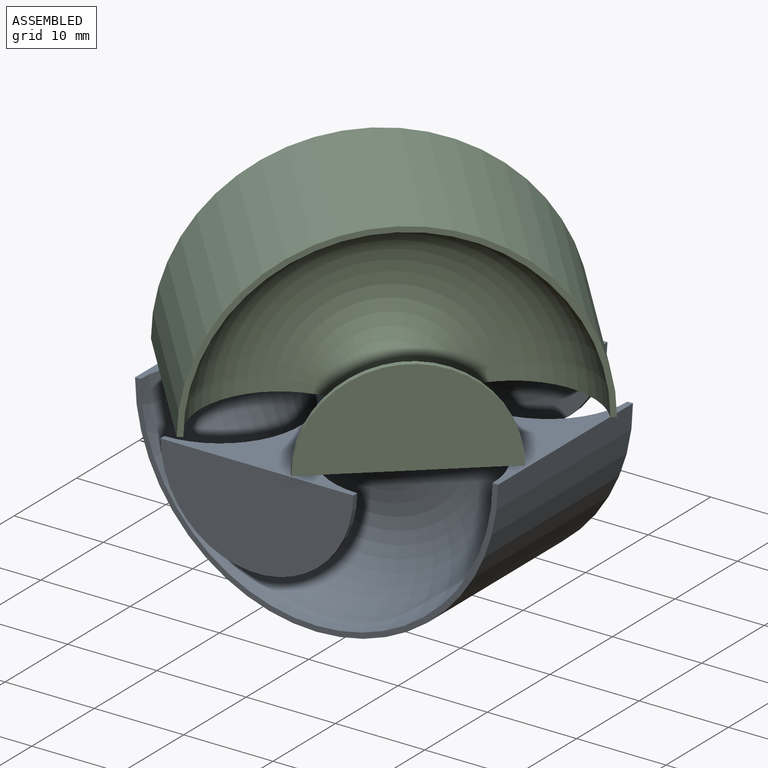
[diagram: assembled view]
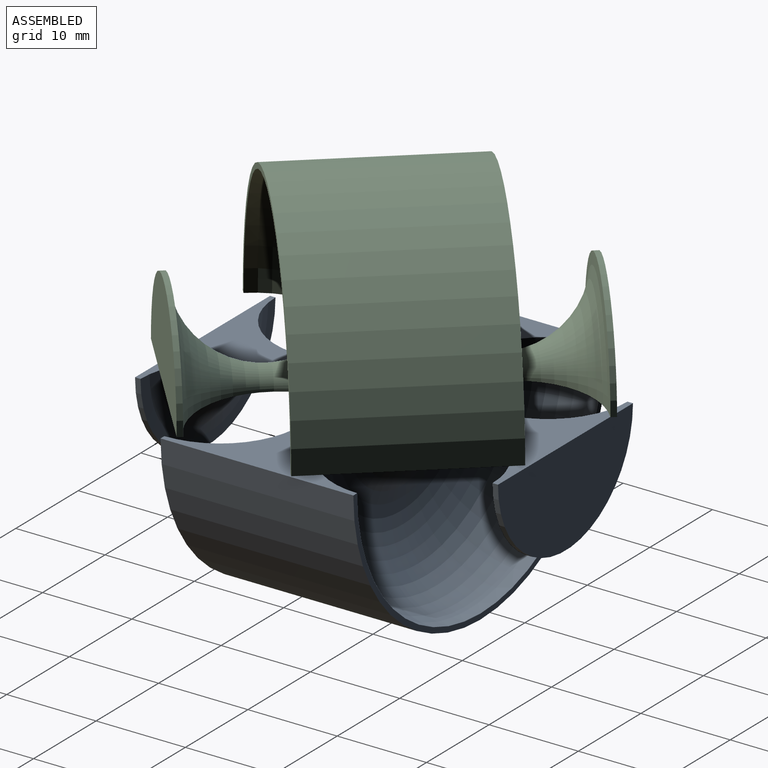
[diagram: assembled view, second angle]
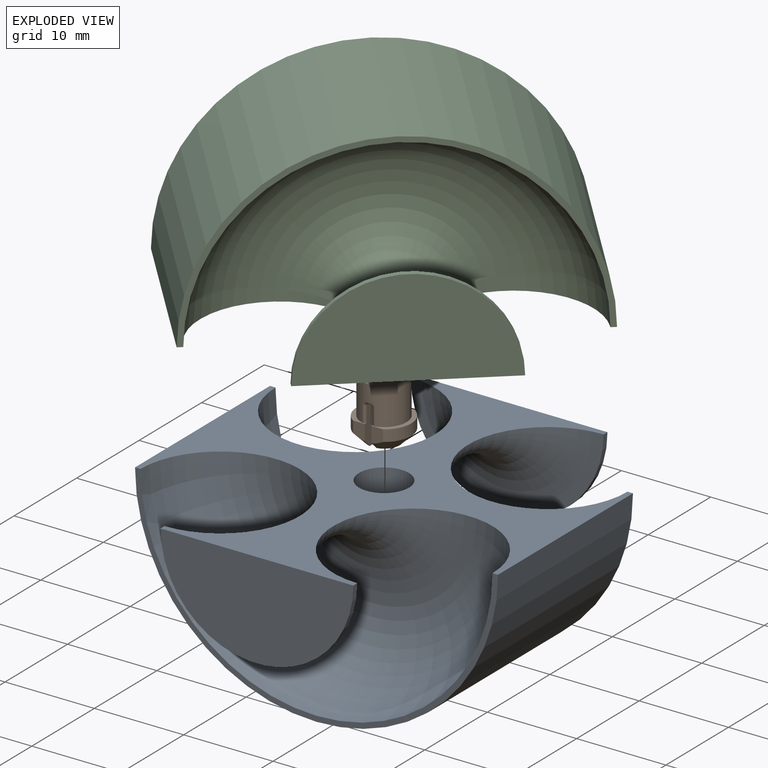
[diagram: exploded view]
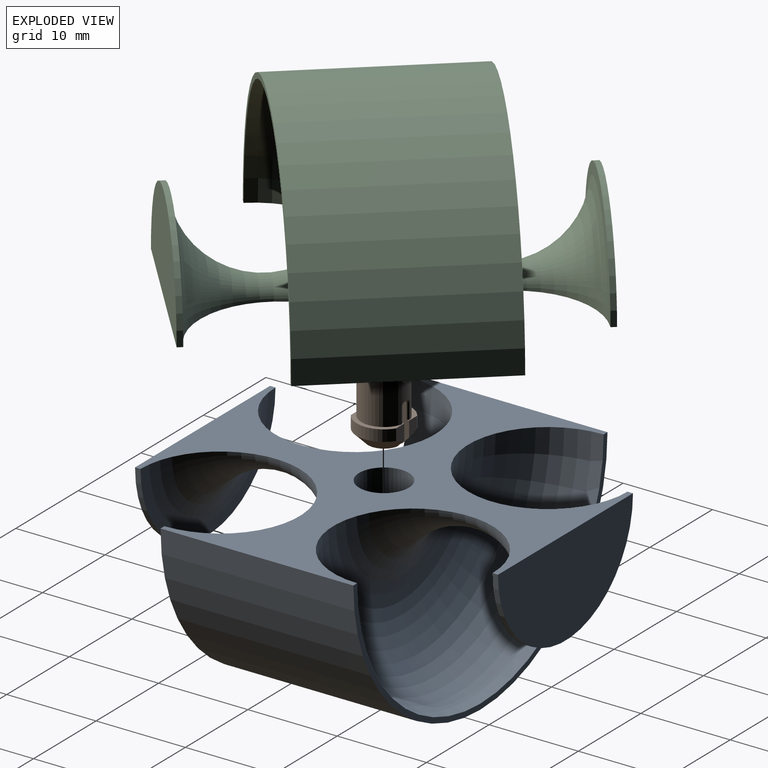
[diagram: exploded view, second angle]
ASSEMBLY  parts=3 mates=2
PART A: 14 faces, bbox 42.7x40.6x21.3 mm
  f0: torus R=10.79mm, axis (0,1,0), area 1175.1mm2, adj f1,f8,f9
  f1: plane 40.64x20.32mm, normal (0,1,0), area 38.3mm2, adj f0,f2,f9
  f2: cylinder r=20.32mm len=40.64mm, axis (0,1,0), area 1378.2mm2, adj f1,f3,f9
  f3: plane 40.64x20.32mm, normal (0,-1,0), area 38.3mm2, adj f2,f4,f9
  f4: torus R=10.79mm, axis (0,1,0), area 1175.1mm2, adj f3,f5,f9
  f5: cylinder r=10.79mm len=21.59mm, axis (0,1,0), area 20.7mm2, adj f4,f6,f9
  f6: plane 21.59x10.8mm, normal (0,-1,0), area 183mm2, adj f5,f9
  f7: plane 21.59x10.8mm, normal (0,1,0), area 183mm2, adj f8,f9
  f8: cylinder r=10.79mm len=21.59mm, axis (0,1,0), area 20.7mm2, adj f0,f7,f9
  f9: plane 40.64x40.64mm, normal (0,0,1), area 515.1mm2, adj f0,f1,f2,f3,f4,f5,f6,f7
  f10: cylinder r=2.79mm len=5.59mm, axis (0,0,-1), area 44.6mm2, adj f9,f11
  f11: plane 6.35x6.35mm, normal (0,0,-1), area 7.1mm2, adj f10,f13
  f12: plane 6.35x6.35mm, normal (0,0,1), area 31.7mm2, adj f13
  f13: cylinder r=3.17mm len=6.35mm, axis (0,0,1), area 70.9mm2, adj f11,f12
PART B: 55 faces, bbox 6.3x6.2x11.6 mm
  f0: cylinder r=3.05mm len=5.08mm, axis (0,0,-1), area 7.6mm2, adj f5,f25,f26,f53
  f1: cylinder r=3.05mm len=5.08mm, axis (0,0,-1), area 7.6mm2, adj f9,f23,f24,f54
  f2: cylinder r=3.05mm len=5.08mm, axis (0,0,-1), area 7.6mm2, adj f3,f21,f22,f51
  f3: plane 5.08x2.67mm, normal (0,0,1), area 3.3mm2, adj f2,f12,f15,f21,f22,f27,f32
  f4: plane 3.47x1.4mm, normal (0,0,1), area 3.6mm2, adj f10,f53
  f5: plane 5.08x2.67mm, normal (0,0,-1), area 3.3mm2, adj f0,f10,f15,f25,f26,f39,f41
  f6: cylinder r=3.05mm len=5.08mm, axis (0,0,-1), area 7.6mm2, adj f7,f19,f20,f52
  f7: plane 5.08x2.67mm, normal (0,0,1), area 3.3mm2, adj f6,f13,f15,f19,f20,f29,f38
  f8: plane 3.47x1.4mm, normal (0,0,1), area 3.6mm2, adj f11,f54
  f9: plane 5.08x2.67mm, normal (0,0,-1), area 3.3mm2, adj f1,f11,f15,f23,f24,f44,f50
  f10: plane 5.11x4.34mm, normal (1,0,0), area 20.1mm2, adj f4,f5,f25,f26,f39,f41,f42,f53
  f11: plane 5.11x4.34mm, normal (-1,0,0), area 20.1mm2, adj f8,f9,f23,f24,f44,f48,f50,f54
  f12: plane 5.11x4.34mm, normal (1,0,0), area 20.1mm2, adj f3,f14,f21,f22,f27,f31,f32,f51
  f13: plane 5.11x4.34mm, normal (-1,0,0), area 20.1mm2, adj f7,f16,f19,f20,f29,f35,f38,f52
  f14: plane 3.47x1.4mm, normal (0,0,-1), area 3.6mm2, adj f12,f51
  f15: cylinder r=2.54mm len=6.35mm, axis (0,0,-1), area 88.8mm2, adj f3,f5,f7,f9,f27,f28,f29,f30
  f16: plane 3.47x1.4mm, normal (0,0,-1), area 3.6mm2, adj f13,f52
  f17: plane 4.57x0.25mm, normal (0,0,1), area 1.2mm2, adj f42,f43,f47,f48
  f18: plane 4.57x0.25mm, normal (0,0,-1), area 1.2mm2, adj f30,f31,f35,f36
  f19: plane 1.97x1.52mm, normal (0,1,0), area 2mm2, adj f6,f7,f13,f52
  f20: plane 1.97x1.52mm, normal (0,-1,0), area 2mm2, adj f6,f7,f13,f52
  f21: plane 1.97x1.52mm, normal (0,1,0), area 2mm2, adj f2,f3,f12,f51
  f22: plane 1.97x1.52mm, normal (0,-1,0), area 2mm2, adj f2,f3,f12,f51
  f23: plane 1.97x1.52mm, normal (0,1,0), area 2mm2, adj f1,f9,f11,f54
  f24: plane 1.97x1.52mm, normal (0,-1,0), area 2mm2, adj f1,f9,f11,f54
  f25: plane 1.97x1.52mm, normal (0,1,0), area 2mm2, adj f0,f5,f10,f53
  f26: plane 1.97x1.52mm, normal (0,-1,0), area 2mm2, adj f0,f5,f10,f53
  f27: cylinder r=0.25mm len=1.78mm, axis (0,0,-1), area 0.8mm2, adj f3,f12,f15,f28
  f28: bspline ~0.69x0.59mm, area 0.2mm2, adj f15,f27,f30,f31
  f29: cylinder r=0.25mm len=1.78mm, axis (0,0,-1), area 0.8mm2, adj f7,f13,f15,f33
  f30: torus R=2.29mm, axis (0,0,-1), area 0.1mm2, adj f15,f18,f28,f33
  f31: cylinder r=0.25mm len=4.57mm, axis (0,-1,0), area 1.8mm2, adj f12,f18,f28,f34
  f32: cylinder r=0.25mm len=1.78mm, axis (0,0,-1), area 0.8mm2, adj f3,f12,f15,f34
  f33: bspline ~0.65x0.62mm, area 0.2mm2, adj f15,f29,f30,f35
  f34: bspline ~0.65x0.62mm, area 0.2mm2, adj f15,f31,f32,f36
  f35: cylinder r=0.25mm len=4.57mm, axis (0,1,0), area 1.8mm2, adj f13,f18,f33,f37
  f36: torus R=2.29mm, axis (0,0,-1), area 0.1mm2, adj f15,f18,f34,f37
  f37: bspline ~0.69x0.59mm, area 0.2mm2, adj f15,f35,f36,f38
  f38: cylinder r=0.25mm len=1.78mm, axis (0,0,-1), area 0.8mm2, adj f7,f13,f15,f37
  f39: cylinder r=0.25mm len=1.78mm, axis (0,0,-1), area 0.8mm2, adj f5,f10,f15,f40
  f40: bspline ~0.65x0.62mm, area 0.2mm2, adj f15,f39,f42,f43
  f41: cylinder r=0.25mm len=1.78mm, axis (0,0,-1), area 0.8mm2, adj f5,f10,f15,f45
  f42: cylinder r=0.25mm len=4.57mm, axis (0,1,0), area 1.8mm2, adj f10,f17,f40,f45
  f43: torus R=2.29mm, axis (0,0,-1), area 0.1mm2, adj f15,f17,f40,f46
  f44: cylinder r=0.25mm len=1.78mm, axis (0,0,-1), area 0.8mm2, adj f9,f11,f15,f46
  f45: bspline ~0.69x0.59mm, area 0.2mm2, adj f15,f41,f42,f47
  f46: bspline ~0.69x0.59mm, area 0.2mm2, adj f15,f43,f44,f48
  f47: torus R=2.29mm, axis (0,0,-1), area 0.1mm2, adj f15,f17,f45,f49
  f48: cylinder r=0.25mm len=4.57mm, axis (0,-1,0), area 1.8mm2, adj f11,f17,f46,f49
  f49: bspline ~0.65x0.62mm, area 0.2mm2, adj f15,f47,f48,f50
  f50: cylinder r=0.25mm len=1.78mm, axis (0,0,-1), area 0.8mm2, adj f9,f11,f15,f49
  f51: cone r=3.05mm half-angle=45deg, axis (0,0,1), area 11.3mm2, adj f2,f12,f14,f21,f22
  f52: cone r=3.05mm half-angle=45deg, axis (0,0,1), area 11.3mm2, adj f6,f13,f16,f19,f20
  f53: cone r=1.78mm half-angle=45deg, axis (0,0,-1), area 11.3mm2, adj f0,f4,f10,f25,f26
  f54: cone r=1.78mm half-angle=45deg, axis (0,0,-1), area 11.3mm2, adj f1,f8,f11,f23,f24
PART C: same geometry as A
PLACE A t=(9.77,8.08,6.81)mm fixed
PLACE B t=(9.77,8.08,1.73)mm
PLACE C rot(axis=(0.35,-0.94,0),180deg) t=(9.77,8.08,8.08)mm
MATE revolute B.f0 <-> A.f10  axis (0,0,-1) through (9.77,8.08,4.27)mm
MATE revolute C.f10 <-> B.f0  axis (0,0,1) through (9.77,8.08,10.62)mm
